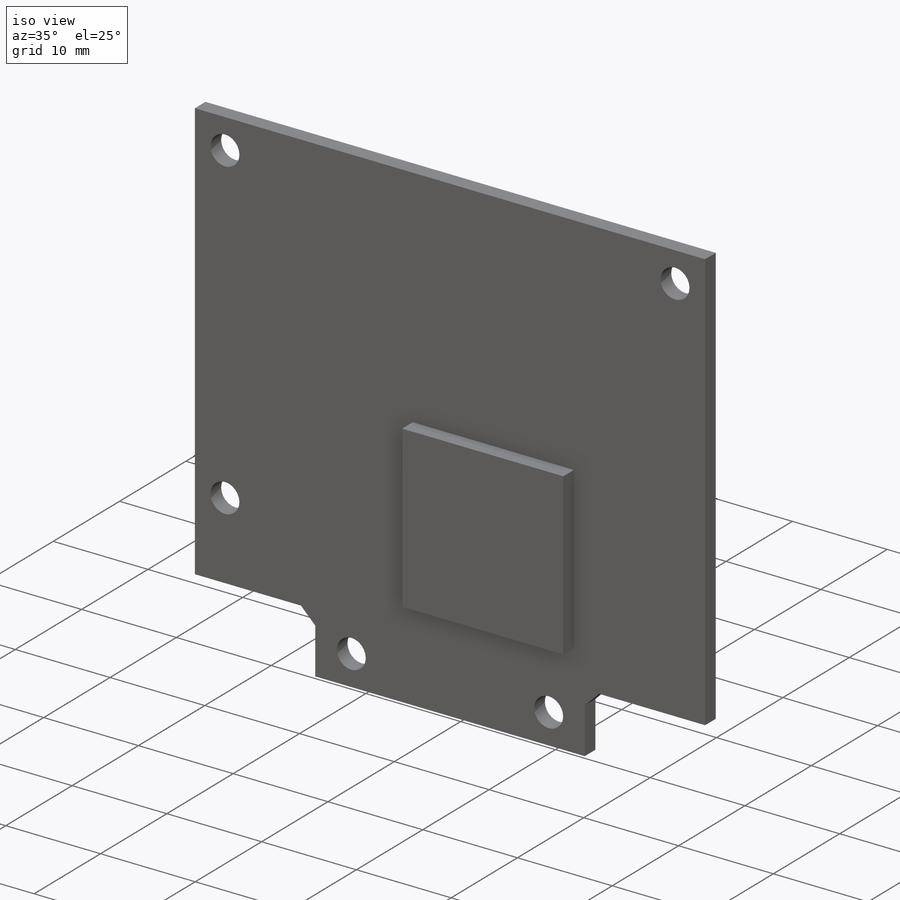
[diagram: iso view]
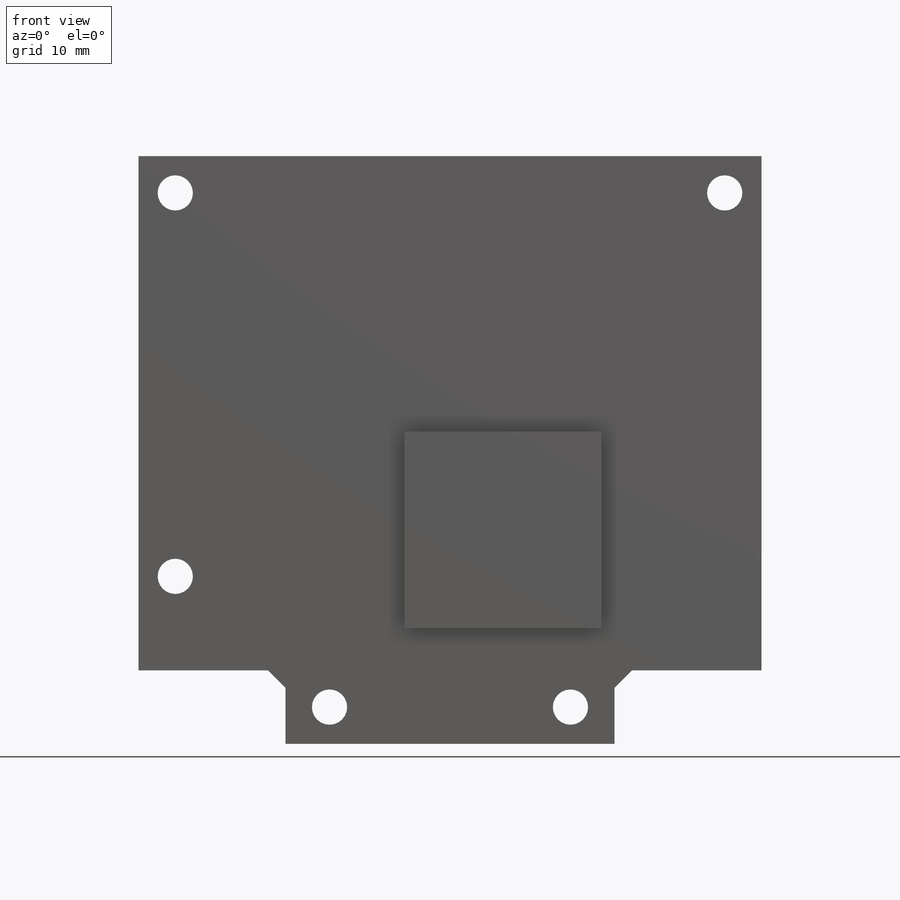
[diagram: front view]
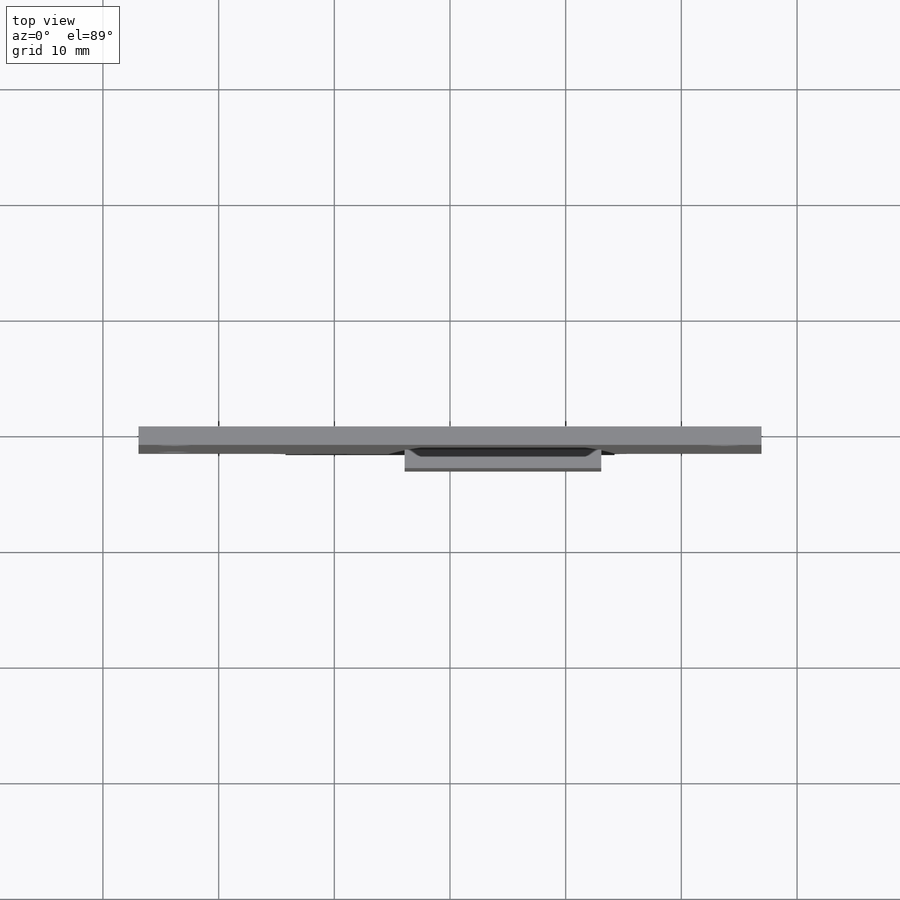
[diagram: top view]
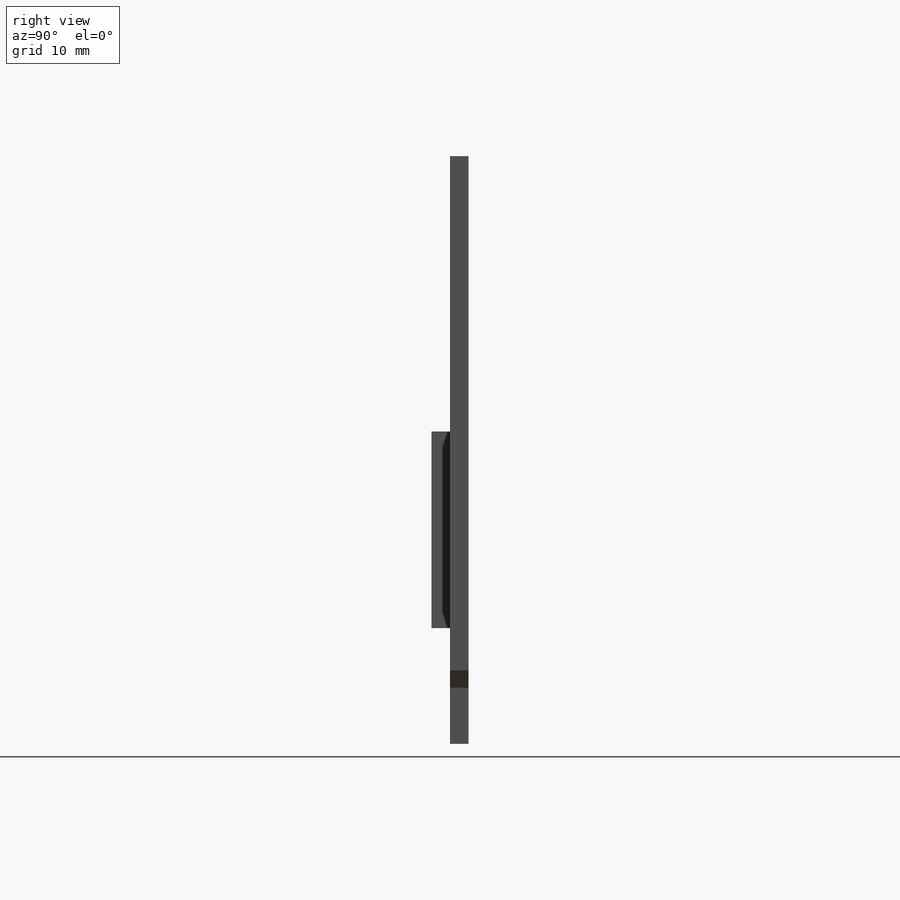
[diagram: right view]
SOLIDWORKS PART (.sldprt)
format: sldprt  version: not decoded by parser v0  size: 437,248 bytes
history: native  units: mm
features: sketch x8, plane x4, extrude x2, material x1, cut_extrude x1 (+9 scaffold rows collapsed)
feature tree (25):
  scaffold x9  (default folders/planes/origin — collapsed)
  material  "Material <not specified>"
  plane  "Plan de face"
  plane  "Plan de dessus"
  plane  "Plan de droite"
  sketch  "PCB_shape"  dims[c1.D1=28.5mm c1.D2=50.8mm c1.D3=44.5mm c1.D4=53.848mm c1.D5=12.0mm c1.D6=46.0mm c2.D3=6.35mm c2.D1=12.7mm c2.D6=16.0mm c2.D5=2.54mm c2.D7=10.54mm c3.D5=16.0mm]
  sketch  "hole_positions"  dims[D6=3.048mm D1=3.175mm D2=8.128mm D3=3.175mm D4=3.175mm D5=16.51mm]
  sketch  "back_components_positions"  dims[D1=13.4mm D2=9.0mm D3=20.3mm D4=1.3mm D5=7.25mm D6=17.0mm D7=4.0mm D8=5.0mm D9=8.0mm D10=15.0mm D11=14.5mm D12=5.0mm D13=6.0mm D14=0.35mm D15=7.75mm D16=8.6mm D17=4.0mm D18=15.2mm]
  sketch  "lens_holder_position"  dims[c1.D1=16.0mm c1.D2=48.6mm c1.D3=2.2mm c2.D2=2.54mm c2.D3=53.848mm]
  sketch  "led_position"  dims[D1=2.8mm D2=3.5mm D3=6.4mm]
  plane  "front_surface"  Offset=1.6mm
  sketch  "Sketch1"  dims[D1=0.0mm]
  extrude  "Extrude1"  [1 undecoded]
  sketch  "Sketch2"  dims[D1=0.0mm D2=0.0mm D3=0.0mm D4=0.0mm D5=0.0mm]
  cut_extrude  "Extrude2"  [1 undecoded]
  sketch  "Sketch4"  dims[D1=17.0mm D2=27.0mm D3=40.0mm]
  extrude  "Extrude3"  Depth=1.6mm
decode coverage: 9 of 11 modeling features carry decoded parameters
note: 2 parameter values undecoded
note: suppression state not decoded; provenance and decode notes live in map.json
